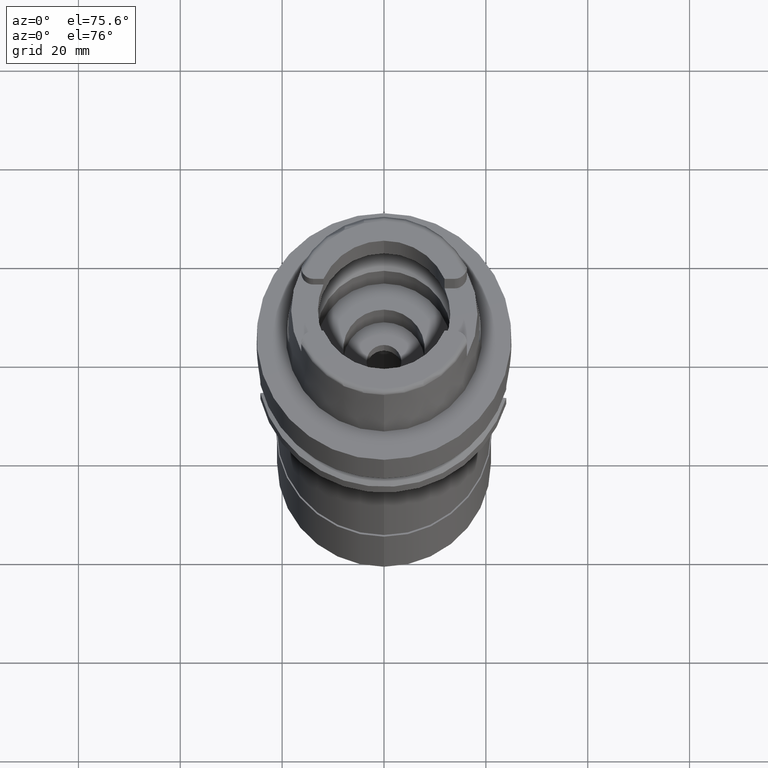
[diagram: clean part render]
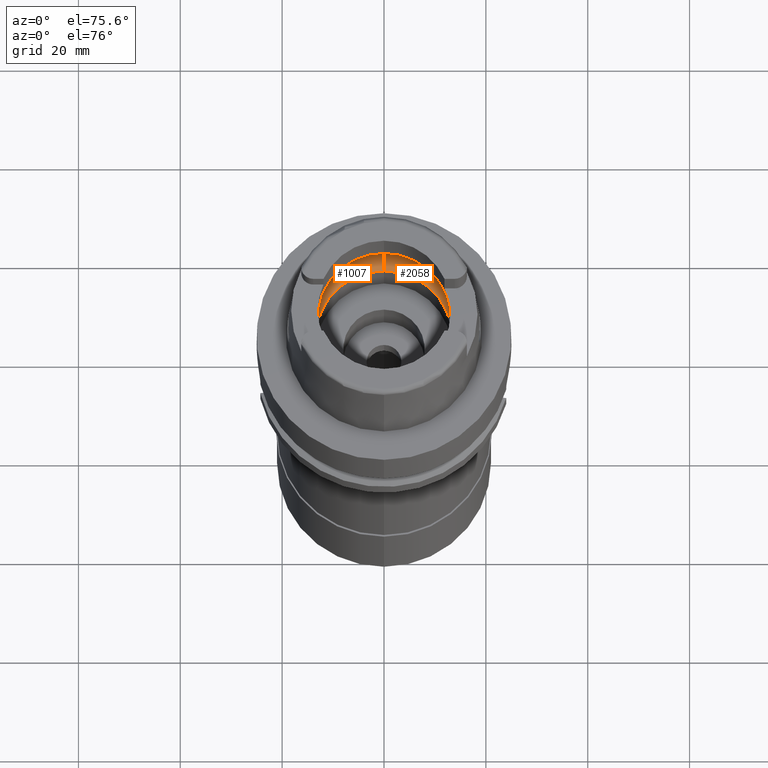
[diagram: same view with one multi-face feature highlighted, each face labeled with its STEP entity id]
A machine part, auxiliary view. The highlighted faces form ONE feature: a constant-radius fillet chain: 2 tangent blend faces with common blend radius 6 mm. The faces share edges in the B-rep.
Their STEP definitions:
[1] entity #2058 (Torus):
#130 = CARTESIAN_POINT ( 'NONE',  ( 15.97371681168999835, 0.0000000000000000000, 4.500000000000000000 ) ) ;
#132 = CARTESIAN_POINT ( 'NONE',  ( 15.94481961884416954, 1.284363903353015202, 4.771085202038585216 ) ) ;
#285 = DIRECTION ( 'NONE',  ( 0.0000000000000000000, 1.000000000000000000, 0.0000000000000000000 ) ) ;
#304 = CIRCLE ( 'NONE', #2232, 13.29999999999999893 ) ;
#358 = CARTESIAN_POINT ( 'NONE',  ( 15.97371681168999835, 0.0000000000000000000, 4.500000000000000000 ) ) ;
#379 = VERTEX_POINT ( 'NONE', #2485 ) ;
#513 = VERTEX_POINT ( 'NONE', #2166 ) ;
#522 = DIRECTION ( 'NONE',  ( 0.0000000000000000000, 0.0000000000000000000, 1.000000000000000000 ) ) ;
#632 = EDGE_CURVE ( 'NONE', #2464, #3618, #4911, .T. ) ;
#765 = EDGE_CURVE ( 'NONE', #513, #2982, #5344, .T. ) ;
#778 = DIRECTION ( 'NONE',  ( -1.000000000000000000, 0.0000000000000000000, 0.0000000000000000000 ) ) ;
#800 = CIRCLE ( 'NONE', #3276, 5.999999999999993783 ) ;
#863 = ORIENTED_EDGE ( 'NONE', *, *, #3490, .T. ) ;
#947 = B_SPLINE_CURVE_WITH_KNOTS ( 'NONE', 3,
 ( #2170, #3921, #132, #1802, #1748, #3423 ),
 .UNSPECIFIED., .F., .F.,
 ( 4, 2, 4 ),
 ( 0.0000000000000000000, 0.5000000000000000000, 1.000000000000000000 ),
 .UNSPECIFIED. ) ;
#950 = EDGE_CURVE ( 'NONE', #3618, #3323, #5147, .T. ) ;
#963 = CARTESIAN_POINT ( 'NONE',  ( 15.92748130313665911, -1.536287252996665798, 4.910241166277792502 ) ) ;
#1228 = EDGE_CURVE ( 'NONE', #4894, #379, #304, .T. ) ;
#1470 = CARTESIAN_POINT ( 'NONE',  ( 0.0000000000000000000, 10.00000000000000000, 5.060987926546999915 ) ) ;
#1547 = DIRECTION ( 'NONE',  ( 0.0000000000000000000, 0.5500000000000007105, -0.8351646544245028281 ) ) ;
#1714 = ORIENTED_EDGE ( 'NONE', *, *, #765, .F. ) ;
#1731 = TOROIDAL_SURFACE ( 'NONE', #2616, 10.00000000000000000, 6.000000000000000000 ) ;
#1748 = CARTESIAN_POINT ( 'NONE',  ( 15.97371681168999835, 0.3626031211496708595, 4.500000000000000888 ) ) ;
#1799 = CARTESIAN_POINT ( 'NONE',  ( 15.96793737312083827, -0.6977532816205072042, 4.565769782590875181 ) ) ;
#1802 = CARTESIAN_POINT ( 'NONE',  ( 15.96793737312082406, 0.6977532815547548006, 4.565769782575238800 ) ) ;
#1876 = AXIS2_PLACEMENT_3D ( 'NONE', #3422, #5431, #3864 ) ;
#1905 = FACE_OUTER_BOUND ( 'NONE', #2271, .T. ) ;
#2058 = ADVANCED_FACE ( 'NONE', ( #1905 ), #1731, .F. ) ;
#2132 = AXIS2_PLACEMENT_3D ( 'NONE', #4512, #778, #2445 ) ;
#2166 = CARTESIAN_POINT ( 'NONE',  ( 0.0000000000000000000, 16.00000000000000000, 5.060987926546999915 ) ) ;
#2170 = CARTESIAN_POINT ( 'NONE',  ( 15.90436354886000103, 1.746774199932999982, 5.060987926546999915 ) ) ;
#2232 = AXIS2_PLACEMENT_3D ( 'NONE', #3144, #522, #3478 ) ;
#2271 = EDGE_LOOP ( 'NONE', ( #4811, #1714, #3594, #4171, #863, #5013, #3946 ) ) ;
#2345 = DIRECTION ( 'NONE',  ( 1.000000000000000000, 0.0000000000000000000, 0.0000000000000000000 ) ) ;
#2445 = DIRECTION ( 'NONE',  ( 0.0000000000000000000, -0.5500000000000007105, -0.8351646544245028281 ) ) ;
#2464 = VERTEX_POINT ( 'NONE', #358 ) ;
#2485 = CARTESIAN_POINT ( 'NONE',  ( 0.0000000000000000000, 13.29999999999999893, 0.05000000000002000067 ) ) ;
#2616 = AXIS2_PLACEMENT_3D ( 'NONE', #4096, #4846, #285 ) ;
#2689 = CARTESIAN_POINT ( 'NONE',  ( 15.94481961884415888, -1.284363903414167618, 4.771085202067363973 ) ) ;
#2950 = AXIS2_PLACEMENT_3D ( 'NONE', #4279, #3362, #4197 ) ;
#2982 = VERTEX_POINT ( 'NONE', #3666 ) ;
#3144 = CARTESIAN_POINT ( 'NONE',  ( 0.0000000000000000000, 0.0000000000000000000, 0.05000000000002000067 ) ) ;
#3276 = AXIS2_PLACEMENT_3D ( 'NONE', #1470, #2345, #1547 ) ;
#3323 = VERTEX_POINT ( 'NONE', #5452 ) ;
#3362 = DIRECTION ( 'NONE',  ( 0.0000000000000000000, 0.0000000000000000000, -1.000000000000000000 ) ) ;
#3422 = CARTESIAN_POINT ( 'NONE',  ( 0.0000000000000000000, 0.0000000000000000000, 5.060987926546999915 ) ) ;
#3423 = CARTESIAN_POINT ( 'NONE',  ( 15.97371681168999835, 0.0000000000000000000, 4.500000000000000000 ) ) ;
#3478 = DIRECTION ( 'NONE',  ( 0.0000000000000000000, -1.000000000000000000, 0.0000000000000000000 ) ) ;
#3490 = EDGE_CURVE ( 'NONE', #4894, #3323, #3644, .T. ) ;
#3557 = CARTESIAN_POINT ( 'NONE',  ( 15.90436354886000103, -1.746774199932999982, 5.060987926546999915 ) ) ;
#3585 = CARTESIAN_POINT ( 'NONE',  ( 15.97371681169000190, -0.3626031211944841792, 4.499999999999999112 ) ) ;
#3594 = ORIENTED_EDGE ( 'NONE', *, *, #3734, .F. ) ;
#3618 = VERTEX_POINT ( 'NONE', #3849 ) ;
#3644 = CIRCLE ( 'NONE', #2132, 5.999999999999993783 ) ;
#3666 = CARTESIAN_POINT ( 'NONE',  ( 15.90436354886000103, 1.746774199932999982, 5.060987926546999915 ) ) ;
#3734 = EDGE_CURVE ( 'NONE', #379, #513, #800, .T. ) ;
#3849 = CARTESIAN_POINT ( 'NONE',  ( 15.90436354886000103, -1.746774199932999982, 5.060987926546999915 ) ) ;
#3864 = DIRECTION ( 'NONE',  ( 0.9940227218040297297, -0.1091733874958031730, 0.0000000000000000000 ) ) ;
#3921 = CARTESIAN_POINT ( 'NONE',  ( 15.92748130313666266, 1.536287252960231609, 4.910241166251698708 ) ) ;
#3946 = ORIENTED_EDGE ( 'NONE', *, *, #632, .F. ) ;
#4096 = CARTESIAN_POINT ( 'NONE',  ( 0.0000000000000000000, 0.0000000000000000000, 5.060987926546999915 ) ) ;
#4171 = ORIENTED_EDGE ( 'NONE', *, *, #1228, .F. ) ;
#4197 = DIRECTION ( 'NONE',  ( 0.0000000000000000000, 1.000000000000000000, 0.0000000000000000000 ) ) ;
#4279 = CARTESIAN_POINT ( 'NONE',  ( 0.0000000000000000000, 0.0000000000000000000, 5.060987926546999915 ) ) ;
#4512 = CARTESIAN_POINT ( 'NONE',  ( 0.0000000000000000000, -10.00000000000000000, 5.060987926546999915 ) ) ;
#4575 = CARTESIAN_POINT ( 'NONE',  ( 0.0000000000000000000, -13.29999999999999893, 0.05000000000002000067 ) ) ;
#4811 = ORIENTED_EDGE ( 'NONE', *, *, #5009, .F. ) ;
#4846 = DIRECTION ( 'NONE',  ( 0.0000000000000000000, 0.0000000000000000000, 1.000000000000000000 ) ) ;
#4894 = VERTEX_POINT ( 'NONE', #4575 ) ;
#4911 = B_SPLINE_CURVE_WITH_KNOTS ( 'NONE', 3,
 ( #130, #3585, #1799, #2689, #963, #3557 ),
 .UNSPECIFIED., .F., .F.,
 ( 4, 2, 4 ),
 ( 0.0000000000000000000, 0.4999999999999998890, 1.000000000000000000 ),
 .UNSPECIFIED. ) ;
#5009 = EDGE_CURVE ( 'NONE', #2982, #2464, #947, .T. ) ;
#5013 = ORIENTED_EDGE ( 'NONE', *, *, #950, .F. ) ;
#5147 = CIRCLE ( 'NONE', #1876, 16.00000000000000355 ) ;
#5344 = CIRCLE ( 'NONE', #2950, 16.00000000000000000 ) ;
#5431 = DIRECTION ( 'NONE',  ( 0.0000000000000000000, 0.0000000000000000000, -1.000000000000000000 ) ) ;
#5452 = CARTESIAN_POINT ( 'NONE',  ( 0.0000000000000000000, -16.00000000000000000, 5.060987926546999915 ) ) ;
[2] entity #1007 (Torus):
#67 = EDGE_CURVE ( 'NONE', #3549, #3055, #3386, .T. ) ;
#110 = CARTESIAN_POINT ( 'NONE',  ( -15.97371681168999835, 0.0000000000000000000, 4.500000000000000000 ) ) ;
#239 = CARTESIAN_POINT ( 'NONE',  ( -15.92748130313666799, 1.536287253005093056, 4.910241166283829450 ) ) ;
#379 = VERTEX_POINT ( 'NONE', #2485 ) ;
#384 = CARTESIAN_POINT ( 'NONE',  ( 0.0000000000000000000, 0.0000000000000000000, 0.05000000000002000067 ) ) ;
#487 = ORIENTED_EDGE ( 'NONE', *, *, #1693, .F. ) ;
#513 = VERTEX_POINT ( 'NONE', #2166 ) ;
#577 = ORIENTED_EDGE ( 'NONE', *, *, #3734, .T. ) ;
#735 = CARTESIAN_POINT ( 'NONE',  ( -15.94481961884416599, 1.284363903428305420, 4.771085202074019094 ) ) ;
#778 = DIRECTION ( 'NONE',  ( -1.000000000000000000, 0.0000000000000000000, 0.0000000000000000000 ) ) ;
#800 = CIRCLE ( 'NONE', #3276, 5.999999999999993783 ) ;
#849 = CIRCLE ( 'NONE', #2509, 16.00000000000000355 ) ;
#934 = CARTESIAN_POINT ( 'NONE',  ( 0.0000000000000000000, 0.0000000000000000000, 5.060987926546999915 ) ) ;
#941 = CARTESIAN_POINT ( 'NONE',  ( -15.92748130313667154, -1.536287252989162022, 4.910241166272420799 ) ) ;
#1007 = ADVANCED_FACE ( 'NONE', ( #2106 ), #3823, .F. ) ;
#1257 = ORIENTED_EDGE ( 'NONE', *, *, #1841, .F. ) ;
#1359 = B_SPLINE_CURVE_WITH_KNOTS ( 'NONE', 3,
 ( #4511, #1526, #4027, #735, #239, #4459 ),
 .UNSPECIFIED., .F., .F.,
 ( 4, 2, 4 ),
 ( 0.0000000000000000000, 0.5000000000000000000, 1.000000000000000000 ),
 .UNSPECIFIED. ) ;
#1362 = CARTESIAN_POINT ( 'NONE',  ( -15.90436354886000103, 1.746774199934000071, 5.060987926546999915 ) ) ;
#1470 = CARTESIAN_POINT ( 'NONE',  ( 0.0000000000000000000, 10.00000000000000000, 5.060987926546999915 ) ) ;
#1525 = ORIENTED_EDGE ( 'NONE', *, *, #4876, .F. ) ;
#1526 = CARTESIAN_POINT ( 'NONE',  ( -15.97371681168999835, 0.3626031212048507202, 4.500000000000000000 ) ) ;
#1547 = DIRECTION ( 'NONE',  ( 0.0000000000000000000, 0.5500000000000007105, -0.8351646544245028281 ) ) ;
#1618 = DIRECTION ( 'NONE',  ( 0.0000000000000000000, 0.0000000000000000000, -1.000000000000000000 ) ) ;
#1693 = EDGE_CURVE ( 'NONE', #3055, #1902, #1359, .T. ) ;
#1703 = CARTESIAN_POINT ( 'NONE',  ( -15.96793737312083117, -0.6977532816069654809, 4.565769782587653758 ) ) ;
#1743 = CARTESIAN_POINT ( 'NONE',  ( 0.0000000000000000000, 0.0000000000000000000, 5.060987926546999915 ) ) ;
#1841 = EDGE_CURVE ( 'NONE', #1902, #513, #849, .T. ) ;
#1902 = VERTEX_POINT ( 'NONE', #1362 ) ;
#1904 = AXIS2_PLACEMENT_3D ( 'NONE', #1743, #1618, #2162 ) ;
#2080 = DIRECTION ( 'NONE',  ( 0.0000000000000000000, 0.0000000000000000000, 1.000000000000000000 ) ) ;
#2106 = FACE_OUTER_BOUND ( 'NONE', #3336, .T. ) ;
#2132 = AXIS2_PLACEMENT_3D ( 'NONE', #4512, #778, #2445 ) ;
#2147 = ORIENTED_EDGE ( 'NONE', *, *, #67, .F. ) ;
#2149 = CARTESIAN_POINT ( 'NONE',  ( -15.90436354886000103, -1.746774199932999982, 5.060987926546999915 ) ) ;
#2162 = DIRECTION ( 'NONE',  ( 0.0000000000000000000, -1.000000000000000000, 0.0000000000000000000 ) ) ;
#2166 = CARTESIAN_POINT ( 'NONE',  ( 0.0000000000000000000, 16.00000000000000000, 5.060987926546999915 ) ) ;
#2345 = DIRECTION ( 'NONE',  ( 1.000000000000000000, 0.0000000000000000000, 0.0000000000000000000 ) ) ;
#2445 = DIRECTION ( 'NONE',  ( 0.0000000000000000000, -0.5500000000000007105, -0.8351646544245028281 ) ) ;
#2485 = CARTESIAN_POINT ( 'NONE',  ( 0.0000000000000000000, 13.29999999999999893, 0.05000000000002000067 ) ) ;
#2509 = AXIS2_PLACEMENT_3D ( 'NONE', #4285, #2618, #4729 ) ;
#2520 = EDGE_CURVE ( 'NONE', #3323, #3549, #5090, .T. ) ;
#2522 = ORIENTED_EDGE ( 'NONE', *, *, #2520, .F. ) ;
#2573 = AXIS2_PLACEMENT_3D ( 'NONE', #934, #2080, #2607 ) ;
#2585 = CARTESIAN_POINT ( 'NONE',  ( -15.94481961884416954, -1.284363903401574358, 4.771085202061439823 ) ) ;
#2607 = DIRECTION ( 'NONE',  ( 0.0000000000000000000, 1.000000000000000000, 0.0000000000000000000 ) ) ;
#2618 = DIRECTION ( 'NONE',  ( 0.0000000000000000000, 0.0000000000000000000, -1.000000000000000000 ) ) ;
#2847 = CARTESIAN_POINT ( 'NONE',  ( -15.90436354886000103, -1.746774199932999982, 5.060987926546999915 ) ) ;
#2880 = DIRECTION ( 'NONE',  ( 0.0000000000000000000, 0.0000000000000000000, 1.000000000000000000 ) ) ;
#3055 = VERTEX_POINT ( 'NONE', #4034 ) ;
#3190 = CIRCLE ( 'NONE', #3630, 13.29999999999999893 ) ;
#3276 = AXIS2_PLACEMENT_3D ( 'NONE', #1470, #2345, #1547 ) ;
#3323 = VERTEX_POINT ( 'NONE', #5452 ) ;
#3336 = EDGE_LOOP ( 'NONE', ( #2522, #3881, #1525, #577, #1257, #487, #2147 ) ) ;
#3357 = DIRECTION ( 'NONE',  ( 0.0000000000000000000, 1.000000000000000000, 0.0000000000000000000 ) ) ;
#3386 = B_SPLINE_CURVE_WITH_KNOTS ( 'NONE', 3,
 ( #2149, #941, #2585, #1703, #5110, #110 ),
 .UNSPECIFIED., .F., .F.,
 ( 4, 2, 4 ),
 ( 0.0000000000000000000, 0.4999999999999998890, 1.000000000000000000 ),
 .UNSPECIFIED. ) ;
#3490 = EDGE_CURVE ( 'NONE', #4894, #3323, #3644, .T. ) ;
#3549 = VERTEX_POINT ( 'NONE', #2847 ) ;
#3630 = AXIS2_PLACEMENT_3D ( 'NONE', #384, #2880, #3357 ) ;
#3644 = CIRCLE ( 'NONE', #2132, 5.999999999999993783 ) ;
#3734 = EDGE_CURVE ( 'NONE', #379, #513, #800, .T. ) ;
#3823 = TOROIDAL_SURFACE ( 'NONE', #2573, 10.00000000000000000, 6.000000000000000000 ) ;
#3881 = ORIENTED_EDGE ( 'NONE', *, *, #3490, .F. ) ;
#4027 = CARTESIAN_POINT ( 'NONE',  ( -15.96793737312083827, 0.6977532816357100431, 4.565769782594490067 ) ) ;
#4034 = CARTESIAN_POINT ( 'NONE',  ( -15.97371681168999835, 0.0000000000000000000, 4.500000000000000000 ) ) ;
#4285 = CARTESIAN_POINT ( 'NONE',  ( 0.0000000000000000000, 0.0000000000000000000, 5.060987926546999915 ) ) ;
#4459 = CARTESIAN_POINT ( 'NONE',  ( -15.90436354886000103, 1.746774199934000071, 5.060987926546999915 ) ) ;
#4511 = CARTESIAN_POINT ( 'NONE',  ( -15.97371681168999835, 0.0000000000000000000, 4.500000000000000000 ) ) ;
#4512 = CARTESIAN_POINT ( 'NONE',  ( 0.0000000000000000000, -10.00000000000000000, 5.060987926546999915 ) ) ;
#4575 = CARTESIAN_POINT ( 'NONE',  ( 0.0000000000000000000, -13.29999999999999893, 0.05000000000002000067 ) ) ;
#4729 = DIRECTION ( 'NONE',  ( -0.9940227218040297297, 0.1091733874958031730, 0.0000000000000000000 ) ) ;
#4876 = EDGE_CURVE ( 'NONE', #379, #4894, #3190, .T. ) ;
#4894 = VERTEX_POINT ( 'NONE', #4575 ) ;
#5090 = CIRCLE ( 'NONE', #1904, 16.00000000000000000 ) ;
#5110 = CARTESIAN_POINT ( 'NONE',  ( -15.97371681168999480, -0.3626031211852542291, 4.499999999999999112 ) ) ;
#5452 = CARTESIAN_POINT ( 'NONE',  ( 0.0000000000000000000, -16.00000000000000000, 5.060987926546999915 ) ) ;